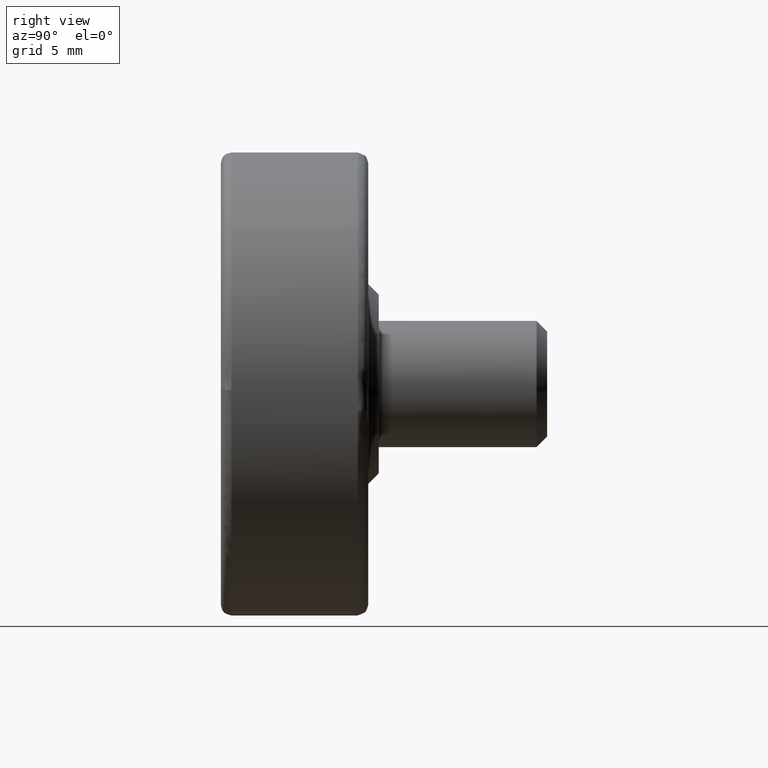
[diagram: clean part render]
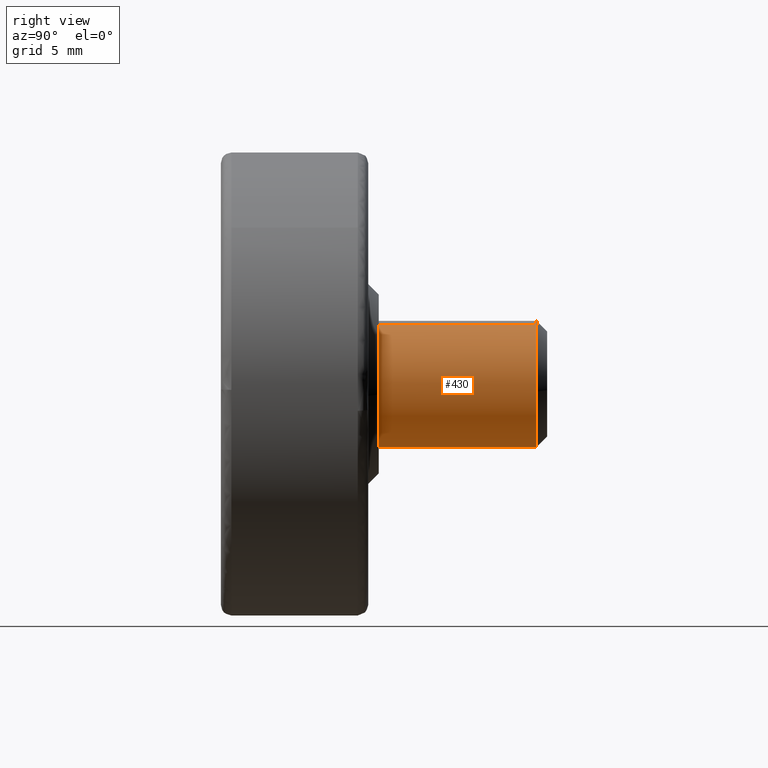
[diagram: same view with one face highlighted and labeled with its STEP entity id]
A machine part, right view. The second image highlights one B-rep face of the part: STEP entity #430.
In plain terms, the highlighted face is a freeform B-spline surface patch.
Its self-contained STEP definition (entity closure, byte-faithful):
#248=CARTESIAN_POINT('',(1.054853923180463,15.0,2.808430736327813));
#249=VERTEX_POINT('',#248);
#265=CARTESIAN_POINT('',(-2.994404395269201,14.999999999986580,0.183145618655619));
#266=VERTEX_POINT('',#265);
#280=CARTESIAN_POINT('',(-2.994404395263733,7.500000000000000,0.183145618635100));
#281=VERTEX_POINT('',#280);
#282=CARTESIAN_POINT('',(-2.994404395269201,14.999999999986580,0.183145618655619));
#283=CARTESIAN_POINT('',(-2.994404395263733,7.500000000000000,0.183145618635100));
#284=QUASI_UNIFORM_CURVE('',1,(#282,#283),.UNSPECIFIED.,.F.,.U.);
#285=EDGE_CURVE('',#266,#281,#284,.T.);
#302=CARTESIAN_POINT('',(1.054853931478792,7.500000000000000,2.808430733210939));
#303=VERTEX_POINT('',#302);
#317=CARTESIAN_POINT('',(1.054853923180463,15.0,2.808430736327813));
#318=CARTESIAN_POINT('',(1.054853931478792,7.500000000000000,2.808430733210939));
#319=QUASI_UNIFORM_CURVE('',1,(#317,#318),.UNSPECIFIED.,.F.,.U.);
#320=EDGE_CURVE('',#249,#303,#319,.T.);
#325=CARTESIAN_POINT('',(-2.994404395265600,15.187500000000000,0.183145618604571));
#326=CARTESIAN_POINT('',(-3.177550013870171,15.187499999999998,-2.811258776661029));
#327=CARTESIAN_POINT('',(-0.183145618604571,15.187500000000000,-2.994404395265601));
#328=CARTESIAN_POINT('',(2.811258776661029,15.187499999999998,-3.177550013870172));
#329=CARTESIAN_POINT('',(2.994404395265600,15.187500000000000,-0.183145618604571));
#330=CARTESIAN_POINT('',(3.129711668608025,15.187499999999995,2.029108745409195));
#331=CARTESIAN_POINT('',(1.054853923174716,15.187500000000000,2.808430736329970));
#332=CARTESIAN_POINT('',(-2.994404395265600,7.307812499999999,0.183145618604571));
#333=CARTESIAN_POINT('',(-3.177550013870171,7.307812500000000,-2.811258776661029));
#334=CARTESIAN_POINT('',(-0.183145618604571,7.307812499999999,-2.994404395265601));
#335=CARTESIAN_POINT('',(2.811258776661029,7.307812500000000,-3.177550013870172));
#336=CARTESIAN_POINT('',(2.994404395265600,7.307812499999999,-0.183145618604571));
#337=CARTESIAN_POINT('',(3.129711668608025,7.307812499999999,2.029108745409195));
#338=CARTESIAN_POINT('',(1.054853923174716,7.307812499999999,2.808430736329970));
#346=(BOUNDED_SURFACE()B_SPLINE_SURFACE(2,1,((#325,#332),(#326,#333),(#327,#334),(#328,#335),(#329,#336),(#330,#337),(#331,#338)),.UNSPECIFIED.,.F.,.F.,.U.)B_SPLINE_SURFACE_WITH_KNOTS((3,2,2,3),(2,2),(0.0,4.970562748477139,9.941125496954278,13.917575695735991),(0.0,7.879687500000003),.UNSPECIFIED.)GEOMETRIC_REPRESENTATION_ITEM()RATIONAL_B_SPLINE_SURFACE(((1.0,1.0),(0.707106781186548,0.707106781186548),(1.0,1.0),(0.707106781186548,0.707106781186548),(1.0,1.0),(0.765685424949238,0.765685424949238),(0.906274169979695,0.906274169979695)))REPRESENTATION_ITEM('')SURFACE());
#347=CARTESIAN_POINT('',(2.979028579091727,14.999999999988720,-0.354102704059711));
#348=VERTEX_POINT('',#347);
#349=CARTESIAN_POINT('',(2.979028579091727,14.999999999988720,-0.354102704059711));
#350=CARTESIAN_POINT('',(3.000000000000000,15.000000000000002,-0.177672359044766));
#351=CARTESIAN_POINT('',(3.0,15.0,-2.492082E-016));
#352=CARTESIAN_POINT('',(3.000000000000000,14.999999999999998,2.077828787074175));
#353=CARTESIAN_POINT('',(1.054853923180463,15.0,2.808430736327812));
#361=(BOUNDED_CURVE()B_SPLINE_CURVE(2,(#349,#350,#351,#352,#353),.UNSPECIFIED.,.F.,.U.)B_SPLINE_CURVE_WITH_KNOTS((3,2,3),(0.229562473505648,0.250000000000000,0.440284170898263),.UNSPECIFIED.)CURVE()GEOMETRIC_REPRESENTATION_ITEM()RATIONAL_B_SPLINE_CURVE((0.956026754168292,0.976055948321936,1.0,0.777068226785435,0.893499554634975))REPRESENTATION_ITEM(''));
#362=EDGE_CURVE('',#348,#249,#361,.T.);
#363=ORIENTED_EDGE('',*,*,#362,.T.);
#364=ORIENTED_EDGE('',*,*,#320,.T.);
#365=CARTESIAN_POINT('',(0.0,7.500000000000000,-3.0));
#366=VERTEX_POINT('',#365);
#367=CARTESIAN_POINT('',(0.0,7.500000000000000,-3.0));
#368=CARTESIAN_POINT('',(3.0,7.500000000000000,-3.0));
#369=CARTESIAN_POINT('',(3.0,7.500000000000000,-2.492082E-016));
#370=CARTESIAN_POINT('',(3.000000000000000,7.500000000000001,2.077828773957489));
#371=CARTESIAN_POINT('',(1.054853931478792,7.500000000000000,2.808430733210940));
#379=(BOUNDED_CURVE()B_SPLINE_CURVE(2,(#367,#368,#369,#370,#371),.UNSPECIFIED.,.F.,.U.)B_SPLINE_CURVE_WITH_KNOTS((3,2,3),(0.0,0.250000000000000,0.440284169964845),.UNSPECIFIED.)CURVE()GEOMETRIC_REPRESENTATION_ITEM()RATIONAL_B_SPLINE_CURVE((1.0,0.707106781186548,1.0,0.777068227879002,0.893499553492693))REPRESENTATION_ITEM(''));
#380=EDGE_CURVE('',#366,#303,#379,.T.);
#381=ORIENTED_EDGE('',*,*,#380,.F.);
#382=CARTESIAN_POINT('',(-2.994404395263734,7.500000000000000,0.183145618635100));
#383=CARTESIAN_POINT('',(-3.000000000000000,7.500000000000000,0.091658289926381));
#384=CARTESIAN_POINT('',(-3.0,7.500000000000000,-2.492082E-016));
#385=CARTESIAN_POINT('',(-3.0,7.500000000000000,-3.0));
#386=CARTESIAN_POINT('',(0.0,7.500000000000000,-3.0));
#394=(BOUNDED_CURVE()B_SPLINE_CURVE(2,(#382,#383,#384,#385,#386),.UNSPECIFIED.,.F.,.U.)B_SPLINE_CURVE_WITH_KNOTS((3,2,3),(0.739332962238450,0.750000000000000,1.0),.UNSPECIFIED.)CURVE()GEOMETRIC_REPRESENTATION_ITEM()RATIONAL_B_SPLINE_CURVE((0.976072041665661,0.987502787899260,1.0,0.707106781186548,1.0))REPRESENTATION_ITEM(''));
#395=EDGE_CURVE('',#281,#366,#394,.T.);
#396=ORIENTED_EDGE('',*,*,#395,.F.);
#397=ORIENTED_EDGE('',*,*,#285,.F.);
#398=CARTESIAN_POINT('',(0.0,15.0,-3.0));
#399=VERTEX_POINT('',#398);
#400=CARTESIAN_POINT('',(-2.994404395269201,14.999999999986578,0.183145618655619));
#401=CARTESIAN_POINT('',(-3.0,14.999999999999998,0.091658289997328));
#402=CARTESIAN_POINT('',(-3.0,15.0,-2.492082E-016));
#403=CARTESIAN_POINT('',(-3.0,14.999999999999995,-3.0));
#404=CARTESIAN_POINT('',(0.0,15.0,-3.0));
#412=(BOUNDED_CURVE()B_SPLINE_CURVE(2,(#400,#401,#402,#403,#404),.UNSPECIFIED.,.F.,.U.)B_SPLINE_CURVE_WITH_KNOTS((3,2,3),(0.739332962230296,0.750000000000000,1.0),.UNSPECIFIED.)CURVE()GEOMETRIC_REPRESENTATION_ITEM()RATIONAL_B_SPLINE_CURVE((0.976072041648187,0.987502787889707,1.0,0.707106781186548,1.0))REPRESENTATION_ITEM(''));
#413=EDGE_CURVE('',#266,#399,#412,.T.);
#414=ORIENTED_EDGE('',*,*,#413,.T.);
#415=CARTESIAN_POINT('',(0.0,15.0,-3.0));
#416=CARTESIAN_POINT('',(2.664523577695389,15.000000000000005,-3.0));
#417=CARTESIAN_POINT('',(2.979028579091727,14.999999999988720,-0.354102704059711));
#425=(BOUNDED_CURVE()B_SPLINE_CURVE(2,(#415,#416,#417),.UNSPECIFIED.,.F.,.U.)B_SPLINE_CURVE_WITH_KNOTS((3,3),(0.0,0.229562473505648),.UNSPECIFIED.)CURVE()GEOMETRIC_REPRESENTATION_ITEM()RATIONAL_B_SPLINE_CURVE((1.0,0.731050832864612,0.956026754168292))REPRESENTATION_ITEM(''));
#426=EDGE_CURVE('',#399,#348,#425,.T.);
#427=ORIENTED_EDGE('',*,*,#426,.T.);
#428=EDGE_LOOP('',(#363,#364,#381,#396,#397,#414,#427));
#429=FACE_OUTER_BOUND('',#428,.T.);
#430=ADVANCED_FACE('',(#429),#346,.T.);